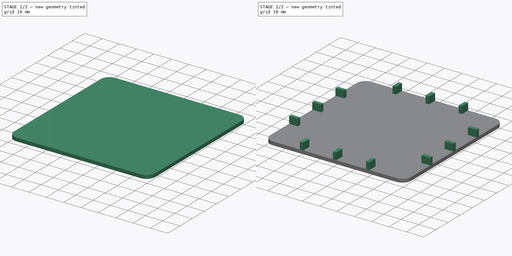
[diagram: build sequence overview — one tinted view per stage of 2, left to right]
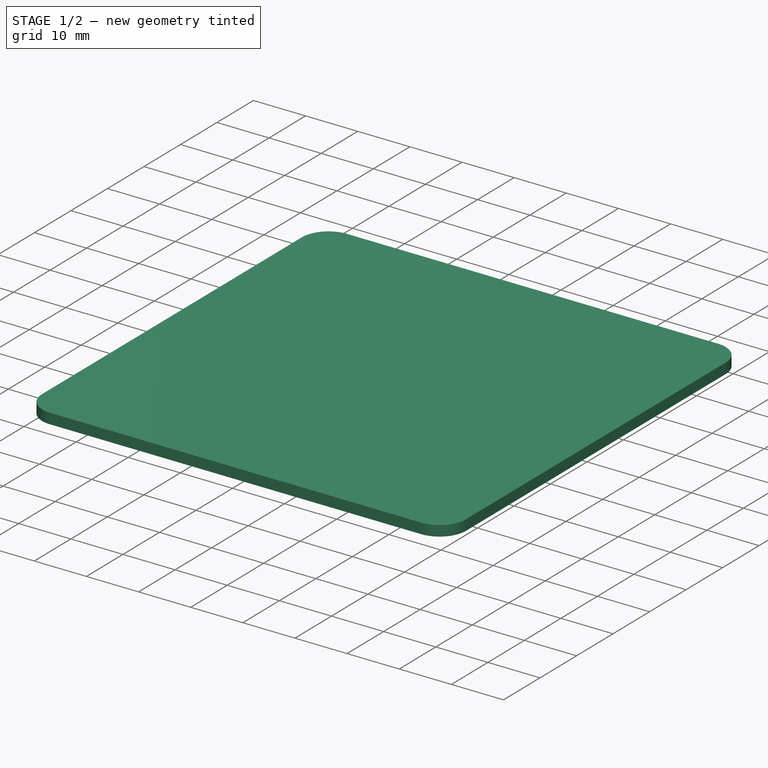
[diagram: stage 1 of 2 — iso view after this stage's code; geometry added in this stage tinted green]
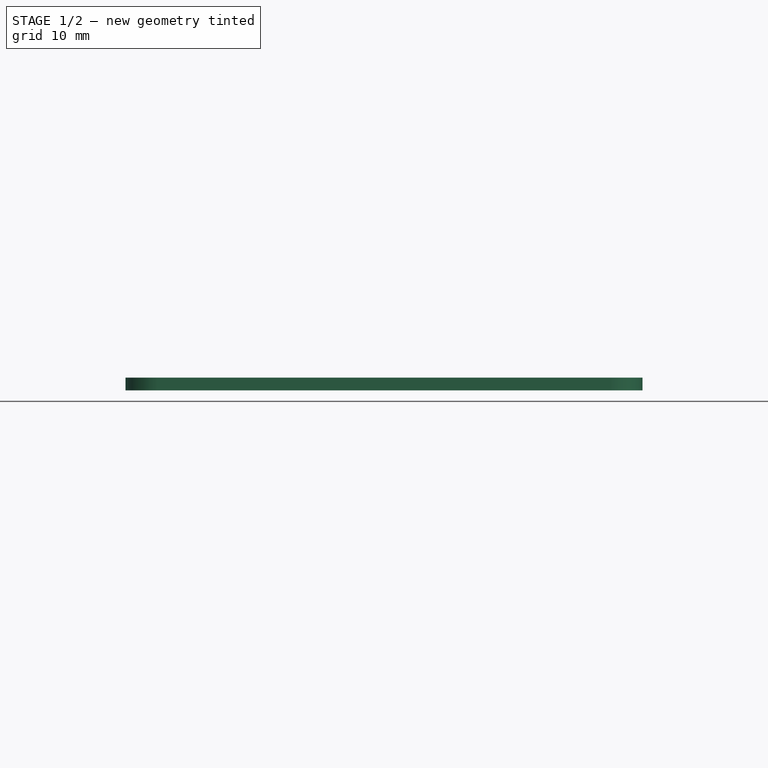
[diagram: stage 1 of 2 — front view after this stage's code; geometry added in this stage tinted green]
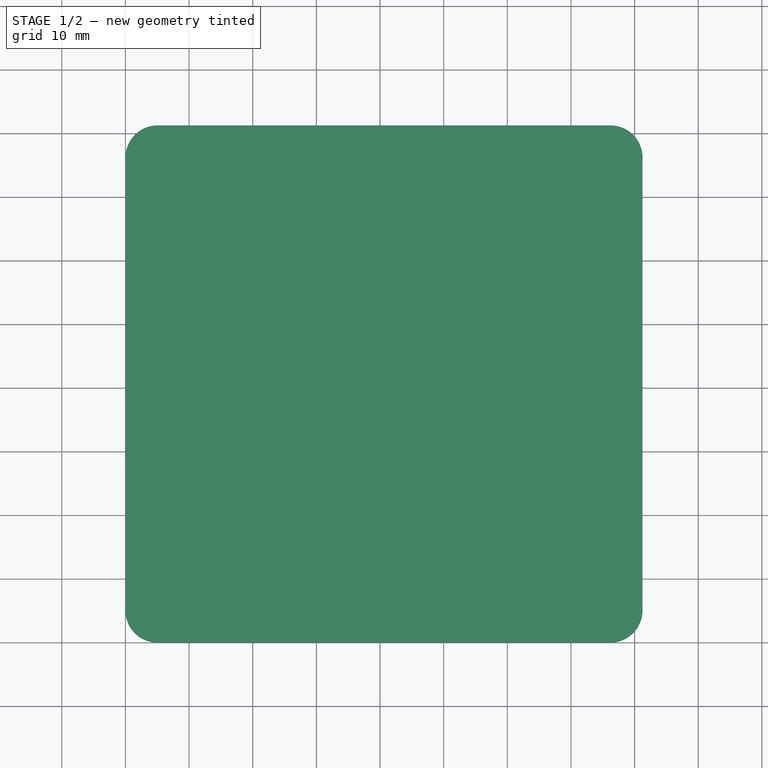
[diagram: stage 1 of 2 — top view after this stage's code; geometry added in this stage tinted green]
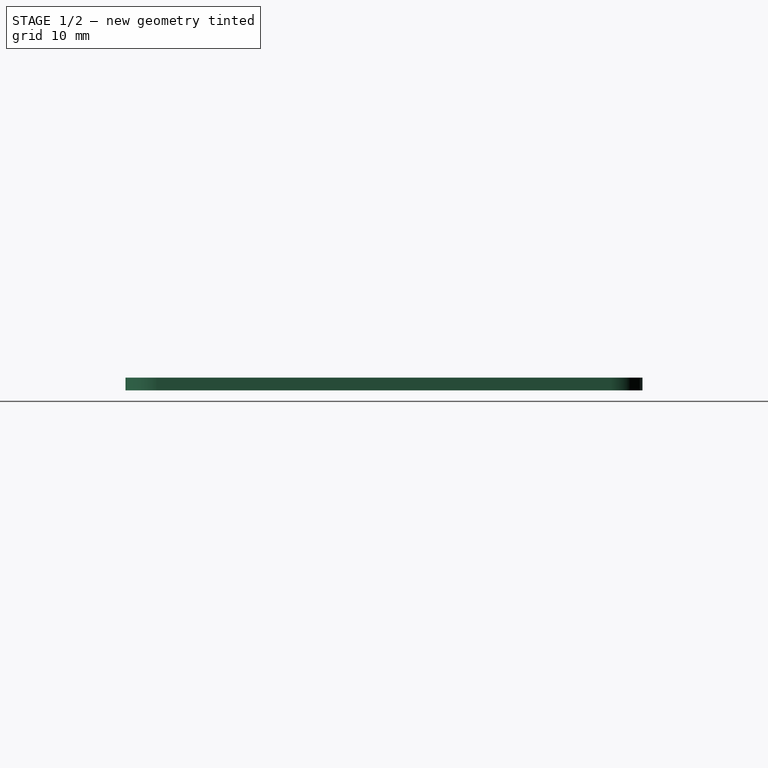
[diagram: stage 1 of 2 — right view after this stage's code; geometry added in this stage tinted green]
FCSTD DOCUMENT  (FreeCAD 0.19R24267 +148 (Git))
Label: 4x4 switch tester bottom
License: All rights reserved
LicenseURL: http://en.wikipedia.org/wiki/All_rights_reserved
objects: Sketcher::SketchObject×2, PartDesign::Pad×2, PartDesign::Fillet×1, PartDesign::Body×1
note: 9 computed .brp shape members not serialized (recipe doc carries the construction recipe); baked Part::Feature solids carry a one-line shape summary decoded from their .brp

FEATURE [Sketcher::SketchObject] Sketch
  FullyConstrained = true
  MapMode = 5
  Support = -> [XY_Plane]
  sketch-geometry (4):
    g0: LineSegment StartX=0 StartY=0 StartZ=0 EndX=81.25 EndY=0 EndZ=0
    g1: LineSegment StartX=81.25 StartY=0 StartZ=0 EndX=81.25 EndY=81.25 EndZ=0
    g2: LineSegment StartX=81.25 StartY=81.25 StartZ=0 EndX=0 EndY=81.25 EndZ=0
    g3: LineSegment StartX=0 StartY=81.25 StartZ=0 EndX=0 EndY=0 EndZ=0
  constraints (11):
    c: Coincident(g0,g1)
    c: Coincident(g1,g2)
    c: Coincident(g2,g3)
    c: Coincident(g3,g0)
    c: Horizontal(g0)
    c: Horizontal(g2)
    c: Vertical(g1)
    c: Vertical(g3)
    c: Coincident(g0,g-1)
    c: Equal(g2,g1)
    c: DistanceX(g2,g2) = 81.25
FEATURE [PartDesign::Pad] Pad
  Direction = (1,1,1)
  Length = 2
  Length2 = 100
  Profile = -> Sketch
  Type = 0
FEATURE [PartDesign::Fillet] Fillet
  Base = -> Pad [Edge2,Edge1,Edge8,Edge5]
  BaseFeature = -> Pad
  Radius = 5.05
  SupportTransform = false
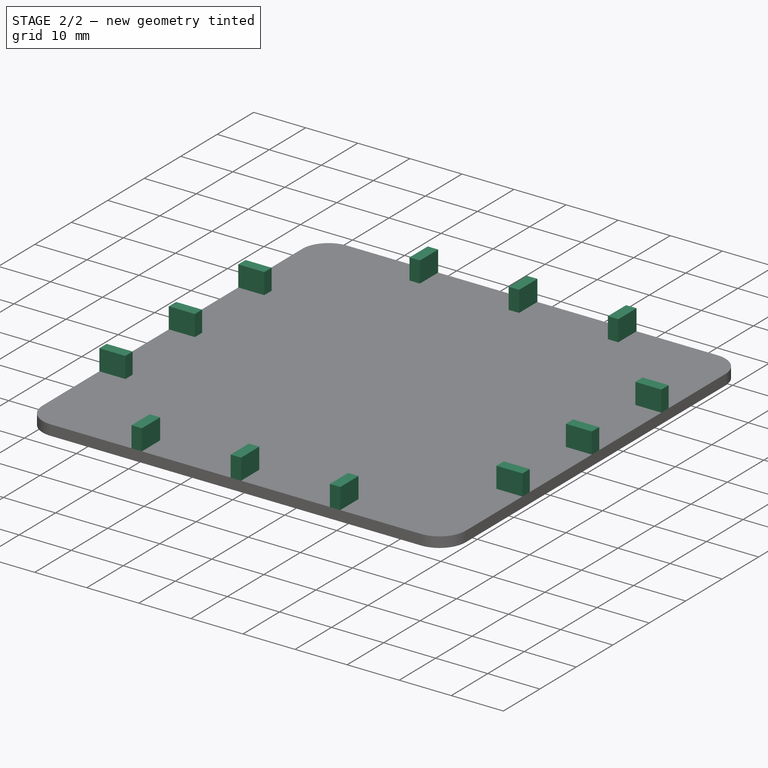
[diagram: stage 2 of 2 — iso view after this stage's code; geometry added in this stage tinted green]
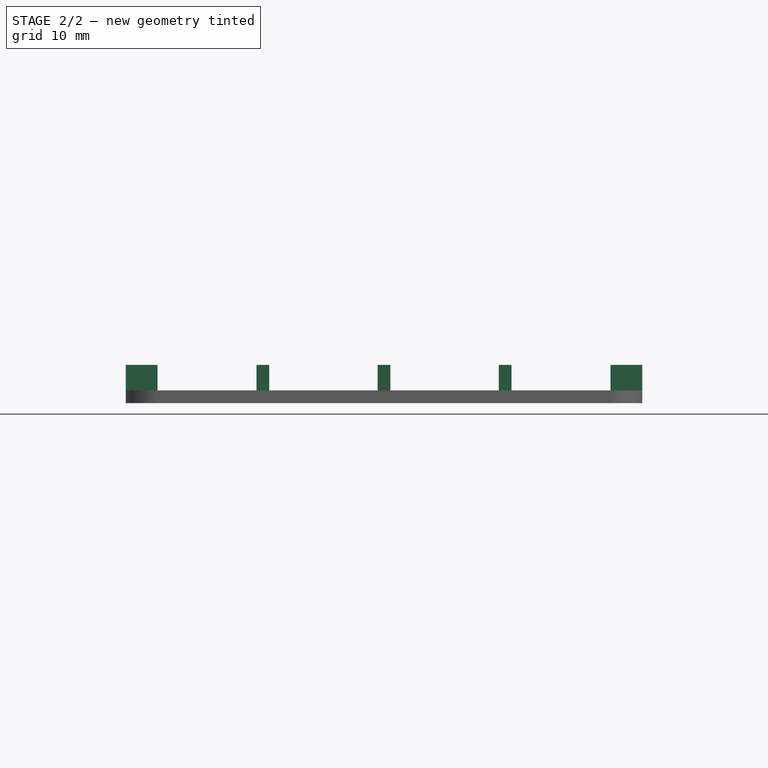
[diagram: stage 2 of 2 — front view after this stage's code; geometry added in this stage tinted green]
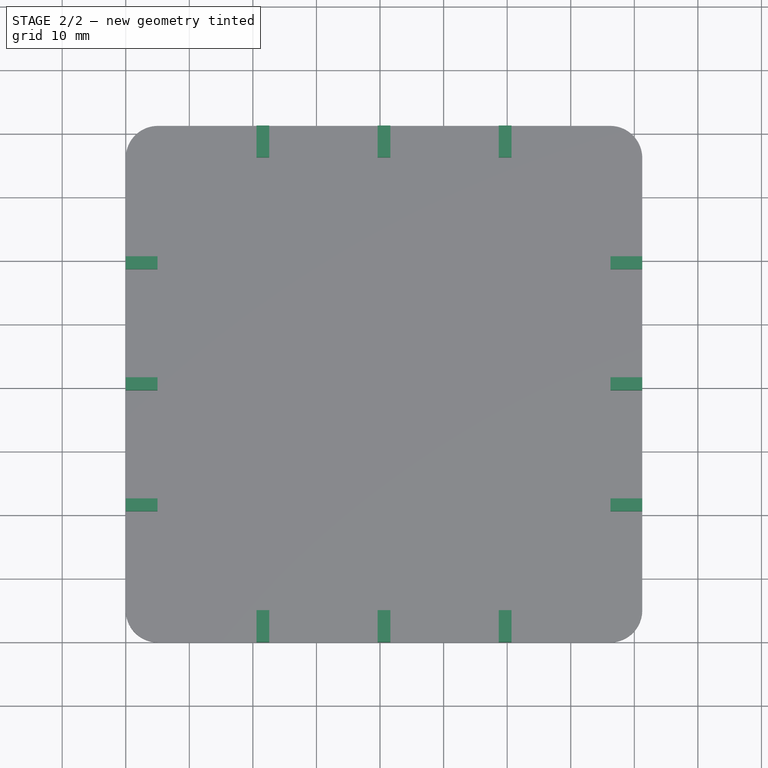
[diagram: stage 2 of 2 — top view after this stage's code; geometry added in this stage tinted green]
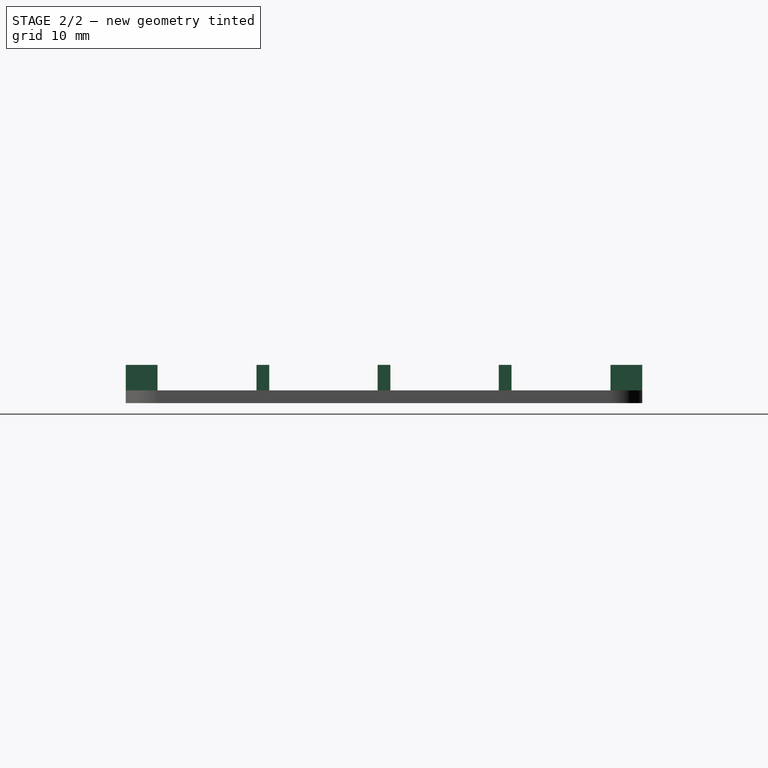
[diagram: stage 2 of 2 — right view after this stage's code; geometry added in this stage tinted green]
FEATURE [Sketcher::SketchObject] Sketch001
  FullyConstrained = true
  MapMode = 5
  Placement = pos=(0,0,2) rot=(0,0,1;0rad)
  Support = -> [Fillet]
  sketch-geometry (103):
    g0: LineSegment StartX=0 StartY=0 StartZ=0 EndX=81.25 EndY=0 EndZ=0
    g1: LineSegment StartX=81.25 StartY=0 StartZ=0 EndX=81.25 EndY=81.25 EndZ=0
    g2: LineSegment StartX=81.25 StartY=81.25 StartZ=0 EndX=0 EndY=81.25 EndZ=0
    g3: LineSegment StartX=0 StartY=81.25 StartZ=0 EndX=0 EndY=0 EndZ=0
    g4: LineSegment StartX=19.05 StartY=81.25 StartZ=0 EndX=19.05 EndY=0 EndZ=0
    g5: LineSegment StartX=24.1 StartY=81.25 StartZ=0 EndX=24.1 EndY=0 EndZ=0
    g6: LineSegment StartX=62.2 StartY=81.25 StartZ=0 EndX=62.2 EndY=0 EndZ=0
    g7: LineSegment StartX=57.15 StartY=81.25 StartZ=0 EndX=57.15 EndY=0 EndZ=0
    g8: LineSegment StartX=0 StartY=81.25 StartZ=0 EndX=81.25 EndY=0 EndZ=0
    g9: LineSegment StartX=81.25 StartY=81.25 StartZ=0 EndX=0 EndY=0 EndZ=0
    g10: LineSegment StartX=19.05 StartY=81.25 StartZ=0 EndX=24.1 EndY=0 EndZ=0
    g11: LineSegment StartX=24.1 StartY=81.25 StartZ=0 EndX=19.05 EndY=0 EndZ=0
    g12: LineSegment StartX=57.15 StartY=81.25 StartZ=0 EndX=62.2 EndY=0 EndZ=0
    g13: LineSegment StartX=62.2 StartY=81.25 StartZ=0 EndX=57.15 EndY=0 EndZ=0
    g14: GeomPoint X=40.625 Y=40.625 Z=0
    g15: GeomPoint X=21.575 Y=40.625 Z=0
    g16: GeomPoint X=59.675 Y=40.625 Z=0
    g17: LineSegment StartX=39.625 StartY=81.25 StartZ=0 EndX=41.625 EndY=81.25 EndZ=0
    g18: LineSegment StartX=41.625 StartY=81.25 StartZ=0 EndX=41.625 EndY=0 EndZ=0
    g19: LineSegment StartX=41.625 StartY=0 StartZ=0 EndX=39.625 EndY=0 EndZ=0
    g20: LineSegment StartX=39.625 StartY=0 StartZ=0 EndX=39.625 EndY=81.25 EndZ=0
    g21: LineSegment StartX=22.575 StartY=81.25 StartZ=0 EndX=20.575 EndY=81.25 EndZ=0
    g22: LineSegment StartX=20.575 StartY=81.25 StartZ=0 EndX=20.575 EndY=0 EndZ=0
    g23: LineSegment StartX=20.575 StartY=0 StartZ=0 EndX=22.575 EndY=0 EndZ=0
    g24: LineSegment StartX=22.575 StartY=0 StartZ=0 EndX=22.575 EndY=81.25 EndZ=0
    g25: LineSegment StartX=20.575 StartY=81.25 StartZ=0 EndX=22.575 EndY=81.25 EndZ=0
    g26: LineSegment StartX=22.575 StartY=81.25 StartZ=0 EndX=22.575 EndY=76.25 EndZ=0
    g27: LineSegment StartX=22.575 StartY=76.25 StartZ=0 EndX=20.575 EndY=76.25 EndZ=0
    g28: LineSegment StartX=20.575 StartY=76.25 StartZ=0 EndX=20.575 EndY=81.25 EndZ=0
    g29: LineSegment StartX=39.625 StartY=81.25 StartZ=0 EndX=41.625 EndY=81.25 EndZ=0
    g30: LineSegment StartX=41.625 StartY=81.25 StartZ=0 EndX=41.625 EndY=76.25 EndZ=0
    g31: LineSegment StartX=41.625 StartY=76.25 StartZ=0 EndX=39.625 EndY=76.25 EndZ=0
    g32: LineSegment StartX=39.625 StartY=76.25 StartZ=0 EndX=39.625 EndY=81.25 EndZ=0
    g33: LineSegment StartX=58.675 StartY=81.25 StartZ=0 EndX=60.675 EndY=81.25 EndZ=0
    g34: LineSegment StartX=60.675 StartY=81.25 StartZ=0 EndX=60.675 EndY=0 EndZ=0
    g35: LineSegment StartX=60.675 StartY=0 StartZ=0 EndX=58.675 EndY=0 EndZ=0
    g36: LineSegment StartX=58.675 StartY=0 StartZ=0 EndX=58.675 EndY=81.25 EndZ=0
    g37: LineSegment StartX=58.675 StartY=81.25 StartZ=0 EndX=60.675 EndY=81.25 EndZ=0
    g38: LineSegment StartX=60.675 StartY=81.25 StartZ=0 EndX=60.675 EndY=76.25 EndZ=0
    g39: LineSegment StartX=60.675 StartY=76.25 StartZ=0 EndX=58.675 EndY=76.25 EndZ=0
    g40: LineSegment StartX=58.675 StartY=76.25 StartZ=0 EndX=58.675 EndY=81.25 EndZ=0
    g41: LineSegment StartX=39.625 StartY=0 StartZ=0 EndX=41.625 EndY=0 EndZ=0
    g42: LineSegment StartX=41.625 StartY=0 StartZ=0 EndX=41.625 EndY=5 EndZ=0
    g43: LineSegment StartX=41.625 StartY=5 StartZ=0 EndX=39.625 EndY=5 EndZ=0
    g44: LineSegment StartX=39.625 StartY=5 StartZ=0 EndX=39.625 EndY=0 EndZ=0
    g45: LineSegment StartX=58.675 StartY=0 StartZ=0 EndX=60.675 EndY=0 EndZ=0
    g46: LineSegment StartX=60.675 StartY=0 StartZ=0 EndX=60.675 EndY=5 EndZ=0
    g47: LineSegment StartX=60.675 StartY=5 StartZ=0 EndX=58.675 EndY=5 EndZ=0
    g48: LineSegment StartX=58.675 StartY=5 StartZ=0 EndX=58.675 EndY=0 EndZ=0
    g49: LineSegment StartX=20.575 StartY=0 StartZ=0 EndX=22.575 EndY=0 EndZ=0
    g50: LineSegment StartX=22.575 StartY=0 StartZ=0 EndX=22.575 EndY=5 EndZ=0
    g51: LineSegment StartX=22.575 StartY=5 StartZ=0 EndX=20.575 EndY=5 EndZ=0
    g52: LineSegment StartX=20.575 StartY=5 StartZ=0 EndX=20.575 EndY=0 EndZ=0
    g53: LineSegment StartX=81.25 StartY=41.625 StartZ=0 EndX=0 EndY=41.625 EndZ=0
    g54: LineSegment StartX=0 StartY=41.625 StartZ=0 EndX=0 EndY=39.625 EndZ=0
    g55: LineSegment StartX=0 StartY=39.625 StartZ=0 EndX=81.25 EndY=39.625 EndZ=0
    g56: LineSegment StartX=81.25 StartY=39.625 StartZ=0 EndX=81.25 EndY=41.625 EndZ=0
    g57: LineSegment StartX=81.25 StartY=39.625 StartZ=0 EndX=76.25 EndY=39.625 EndZ=0
    g58: LineSegment StartX=76.25 StartY=39.625 StartZ=0 EndX=76.25 EndY=41.625 EndZ=0
    g59: LineSegment StartX=76.25 StartY=41.625 StartZ=0 EndX=81.25 EndY=41.625 EndZ=0
    g60: LineSegment StartX=81.25 StartY=41.625 StartZ=0 EndX=81.25 EndY=39.625 EndZ=0
    g61: LineSegment StartX=0 StartY=41.625 StartZ=0 EndX=5 EndY=41.625 EndZ=0
    g62: LineSegment StartX=5 StartY=41.625 StartZ=0 EndX=5 EndY=39.625 EndZ=0
    g63: LineSegment StartX=5 StartY=39.625 StartZ=0 EndX=0 EndY=39.625 EndZ=0
    g64: LineSegment StartX=0 StartY=39.625 StartZ=0 EndX=0 EndY=41.625 EndZ=0
    g65: LineSegment StartX=72.6188 StartY=81.25 StartZ=0 EndX=72.6188 EndY=62.2 EndZ=0
    g66: LineSegment StartX=72.6188 StartY=62.2 StartZ=0 EndX=72.6188 EndY=57.15 EndZ=0
    g67: LineSegment StartX=81.25 StartY=62.2 StartZ=0 EndX=0 EndY=62.2 EndZ=0
    g68: LineSegment StartX=81.25 StartY=57.15 StartZ=0 EndX=0 EndY=57.15 EndZ=0
    g69: LineSegment StartX=81.25 StartY=62.2 StartZ=0 EndX=72.6188 EndY=57.15 EndZ=0
    g70: LineSegment StartX=81.25 StartY=57.15 StartZ=0 EndX=72.6188 EndY=62.2 EndZ=0
    g71: GeomPoint X=76.9344 Y=59.675 Z=0
    g72: LineSegment StartX=81.25 StartY=60.675 StartZ=0 EndX=76.25 EndY=60.675 EndZ=0
    g73: LineSegment StartX=76.25 StartY=60.675 StartZ=0 EndX=76.25 EndY=58.675 EndZ=0
    g74: LineSegment StartX=76.25 StartY=58.675 StartZ=0 EndX=81.25 EndY=58.675 EndZ=0
    g75: LineSegment StartX=81.25 StartY=58.675 StartZ=0 EndX=81.25 EndY=60.675 EndZ=0
    g76: LineSegment StartX=81.25 StartY=60.675 StartZ=0 EndX=76.25 EndY=58.675 EndZ=0
    g77: LineSegment StartX=81.25 StartY=58.675 StartZ=0 EndX=76.25 EndY=60.675 EndZ=0
    g78: GeomPoint X=78.75 Y=59.675 Z=0
    g79: LineSegment StartX=76.9344 StartY=59.675 StartZ=0 EndX=78.75 EndY=59.675 EndZ=0
    g80: LineSegment StartX=73.2897 StartY=0 StartZ=0 EndX=73.2897 EndY=19.05 EndZ=0
    g81: LineSegment StartX=73.2897 StartY=19.05 StartZ=0 EndX=73.2897 EndY=24.1 EndZ=0
    g82: LineSegment StartX=81.25 StartY=24.1 StartZ=0 EndX=0 EndY=24.1 EndZ=0
    g83: LineSegment StartX=81.25 StartY=19.05 StartZ=0 EndX=0 EndY=19.05 EndZ=0
    g84: LineSegment StartX=81.25 StartY=24.1 StartZ=0 EndX=73.2897 EndY=19.05 EndZ=0
    g85: LineSegment StartX=81.25 StartY=19.05 StartZ=0 EndX=73.2897 EndY=24.1 EndZ=0
    g86: GeomPoint X=77.2698 Y=21.575 Z=0
    g87: LineSegment StartX=81.25 StartY=22.575 StartZ=0 EndX=76.25 EndY=22.575 EndZ=0
    g88: LineSegment StartX=76.25 StartY=22.575 StartZ=0 EndX=76.25 EndY=20.575 EndZ=0
    g89: LineSegment StartX=76.25 StartY=20.575 StartZ=0 EndX=81.25 EndY=20.575 EndZ=0
    g90: LineSegment StartX=81.25 StartY=20.575 StartZ=0 EndX=81.25 EndY=22.575 EndZ=0
    g91: LineSegment StartX=76.25 StartY=20.575 StartZ=0 EndX=0 EndY=20.575 EndZ=0
    g92: LineSegment StartX=76.25 StartY=22.575 StartZ=0 EndX=0 EndY=22.575 EndZ=0
    g93: LineSegment StartX=76.25 StartY=60.675 StartZ=0 EndX=0 EndY=60.675 EndZ=0
    g94: LineSegment StartX=76.25 StartY=58.675 StartZ=0 EndX=0 EndY=58.675 EndZ=0
    g95: LineSegment StartX=0 StartY=60.675 StartZ=0 EndX=5 EndY=60.675 EndZ=0
    g96: LineSegment StartX=5 StartY=60.675 StartZ=0 EndX=5 EndY=58.675 EndZ=0
    g97: LineSegment StartX=5 StartY=58.675 StartZ=0 EndX=0 EndY=58.675 EndZ=0
    g98: LineSegment StartX=0 StartY=58.675 StartZ=0 EndX=0 EndY=60.675 EndZ=0
    g99: LineSegment StartX=0 StartY=22.575 StartZ=0 EndX=5 EndY=22.575 EndZ=0
    g100: LineSegment StartX=5 StartY=22.575 StartZ=0 EndX=5 EndY=20.575 EndZ=0
    g101: LineSegment StartX=5 StartY=20.575 StartZ=0 EndX=0 EndY=20.575 EndZ=0
    g102: LineSegment StartX=0 StartY=20.575 StartZ=0 EndX=0 EndY=22.575 EndZ=0
  constraints (289):
    c: Coincident(g0,g1)
    c: Coincident(g1,g2)
    c: Coincident(g2,g3)
    c: Coincident(g3,g0)
    c: Horizontal(g0)
    c: Horizontal(g2)
    c: Vertical(g1)
    c: Vertical(g3)
    c: Coincident(g0,g-1)
    c: Equal(g2,g1)
    c: DistanceX(g2,g2) = 81.25
    c: PointOnObject(g4,g2)
    c: PointOnObject(g4,g0)
    c: Vertical(g4)
    c: Distance(g2,g4) = 19.05
    c: PointOnObject(g5,g2)
    c: PointOnObject(g5,g0)
    c: Vertical(g5)
    c: Distance(g5,g4) = 5.05
    c: PointOnObject(g6,g2)
    c: PointOnObject(g6,g0)
    c: Vertical(g6)
    c: PointOnObject(g7,g2)
    c: PointOnObject(g7,g0)
    c: Vertical(g7)
    c: Distance(g7,g6) = 5.05
    c: Distance(g1,g6) = 19.05
    c: Coincident(g8,g2)
    c: Coincident(g8,g0)
    c: Coincident(g9,g1)
    c: Coincident(g9,g-1)
    c: Coincident(g10,g4)
    c: Coincident(g10,g5)
    c: Coincident(g11,g5)
    c: Coincident(g11,g4)
    c: Coincident(g12,g7)
    c: Coincident(g12,g6)
    c: Coincident(g13,g6)
    c: Coincident(g13,g7)
    c: PointOnObject(g14,g8)
    c: PointOnObject(g15,g10)
    c: PointOnObject(g16,g12)
    c: PointOnObject(g14,g9)
    c: PointOnObject(g15,g11)
    c: PointOnObject(g16,g13)
    c: Coincident(g17,g18)
    c: Coincident(g18,g19)
    c: Coincident(g19,g20)
    c: Coincident(g20,g17)
    c: Horizontal(g17)
    c: Horizontal(g19)
    c: Vertical(g18)
    c: Vertical(g20)
    c: PointOnObject(g17,g2)
    c: DistanceX(g19,g19) = 2
    c: PointOnObject(g18,g0)
    c: Coincident(g21,g22)
    c: Coincident(g22,g23)
    c: Coincident(g23,g24)
    c: Coincident(g24,g21)
    c: Horizontal(g21)
    c: Horizontal(g23)
    c: Vertical(g22)
    c: Vertical(g24)
    c: Distance(g21) = 2
    c: PointOnObject(g21,g2)
    c: PointOnObject(g23,g0)
    c: Distance(g15,g24) = 1
    c: Coincident(g25,g26)
    c: Coincident(g26,g27)
    c: Coincident(g27,g28)
    c: Coincident(g28,g25)
    c: Horizontal(g25)
    c: Horizontal(g27)
    c: Vertical(g26)
    c: Vertical(g28)
    c: Coincident(g25,g21)
    c: PointOnObject(g26,g24)
    c: DistanceY(g26,g26) = 5
    c: Coincident(g29,g30)
    c: Coincident(g30,g31)
    c: Coincident(g31,g32)
    c: Coincident(g32,g29)
    c: Horizontal(g29)
    c: Horizontal(g31)
    c: Vertical(g30)
    c: Vertical(g32)
    c: Coincident(g29,g17)
    c: PointOnObject(g30,g18)
    c: DistanceY(g30,g30) = 5
    c: Coincident(g33,g34)
    c: Coincident(g34,g35)
    c: Coincident(g35,g36)
    c: Coincident(g36,g33)
    c: Horizontal(g33)
    c: Horizontal(g35)
    c: Vertical(g34)
    c: Vertical(g36)
    c: PointOnObject(g33,g2)
    c: DistanceX(g35,g35) = 2
    c: PointOnObject(g34,g0)
    c: Distance(g16,g34) = 1
    c: Coincident(g37,g38)
    c: Coincident(g38,g39)
    c: Coincident(g39,g40)
    c: Coincident(g40,g37)
    c: Horizontal(g37)
    c: Horizontal(g39)
    c: Vertical(g38)
    c: Vertical(g40)
    c: Coincident(g37,g33)
    c: PointOnObject(g38,g34)
    c: DistanceY(g38,g38) = 5
    c: Coincident(g41,g42)
    c: Coincident(g42,g43)
    c: Coincident(g43,g44)
    c: Coincident(g44,g41)
    c: Horizontal(g41)
    c: Horizontal(g43)
    c: Vertical(g42)
    c: Vertical(g44)
    c: Coincident(g41,g19)
    c: PointOnObject(g42,g18)
    c: DistanceY(g42,g42) = 5
    c: Coincident(g45,g46)
    c: Coincident(g46,g47)
    c: Coincident(g47,g48)
    c: Coincident(g48,g45)
    c: Horizontal(g45)
    c: Horizontal(g47)
    c: Vertical(g46)
    c: Vertical(g48)
    c: Coincident(g45,g35)
    c: PointOnObject(g46,g34)
    c: DistanceY(g46,g46) = 5
    c: Coincident(g49,g50)
    c: Coincident(g50,g51)
    c: Coincident(g51,g52)
    c: Coincident(g52,g49)
    c: Horizontal(g49)
    c: Horizontal(g51)
    c: Vertical(g50)
    c: Vertical(g52)
    c: Coincident(g49,g22)
    c: PointOnObject(g50,g24)
    c: DistanceY(g50,g50) = 5
    c: Coincident(g53,g54)
    c: Coincident(g54,g55)
    c: Coincident(g55,g56)
    c: Coincident(g56,g53)
    c: Horizontal(g53)
    c: Horizontal(g55)
    c: Vertical(g54)
    c: Vertical(g56)
    c: PointOnObject(g53,g1)
    c: DistanceY(g54,g54) = 2
    c: PointOnObject(g54,g3)
    c: Distance(g16,g55) = 1
    c: Coincident(g57,g58)
    c: Coincident(g58,g59)
    c: Coincident(g59,g60)
    c: Coincident(g60,g57)
    c: Horizontal(g57)
    c: Horizontal(g59)
    c: Vertical(g58)
    c: Vertical(g60)
    c: Coincident(g57,g55)
    c: PointOnObject(g58,g53)
    c: DistanceX(g57,g57) = 5
    c: Coincident(g61,g62)
    c: Coincident(g62,g63)
    c: Coincident(g63,g64)
    c: Coincident(g64,g61)
    c: Horizontal(g61)
    c: Horizontal(g63)
    c: Vertical(g62)
    c: Vertical(g64)
    c: Coincident(g61,g53)
    c: PointOnObject(g62,g55)
    c: DistanceX(g63,g63) = 5
    c: PointOnObject(g65,g2)
    c: Vertical(g65)
    c: DistanceY(g65,g65) = 19.05
    c: Coincident(g66,g65)
    c: Vertical(g66)
    c: DistanceY(g66,g66) = 5.05
    c: PointOnObject(g67,g1)
    c: PointOnObject(g67,g3)
    c: Horizontal(g67)
    c: PointOnObject(g68,g1)
    c: PointOnObject(g68,g3)
    c: Horizontal(g68)
    c: PointOnObject(g66,g68)
    c: PointOnObject(g65,g67)
    c: Coincident(g69,g67)
    c: Coincident(g69,g66)
    c: Coincident(g70,g68)
    c: Coincident(g70,g65)
    c: PointOnObject(g71,g69)
    c: PointOnObject(g71,g70)
    c: Coincident(g72,g73)
    c: Coincident(g73,g74)
    c: Coincident(g74,g75)
    c: Coincident(g75,g72)
    c: Horizontal(g72)
    c: Horizontal(g74)
    c: Vertical(g73)
    c: Vertical(g75)
    c: PointOnObject(g72,g1)
    c: DistanceY(g73,g73) = 2
    c: DistanceX(g74,g74) = 5
    c: Coincident(g76,g72)
    c: Coincident(g76,g73)
    c: Coincident(g77,g74)
    c: Coincident(g77,g72)
    c: PointOnObject(g78,g76)
    c: PointOnObject(g78,g77)
    c: Coincident(g79,g71)
    c: Coincident(g79,g78)
    c: Horizontal(g79)
    c: Distance(g69) = 10
    c: PointOnObject(g80,g0)
    c: Vertical(g80)
    c: Coincident(g81,g80)
    c: Vertical(g81)
    c: DistanceY(g80,g80) = 19.05
    c: Distance(g81) = 5.05
    c: DistanceX(g81) = 73.2897
    c: PointOnObject(g82,g1)
    c: PointOnObject(g82,g3)
    c: Horizontal(g82)
    c: PointOnObject(g83,g1)
    c: PointOnObject(g83,g3)
    c: Horizontal(g83)
    c: PointOnObject(g80,g83)
    c: PointOnObject(g81,g82)
    c: Coincident(g84,g82)
    c: Coincident(g84,g80)
    c: Coincident(g85,g83)
    c: Coincident(g85,g81)
    c: PointOnObject(g86,g84)
    c: PointOnObject(g86,g85)
    c: Coincident(g87,g88)
    c: Coincident(g88,g89)
    c: Coincident(g89,g90)
    c: Coincident(g90,g87)
    c: Horizontal(g87)
    c: Horizontal(g89)
    c: Vertical(g88)
    c: Vertical(g90)
    c: PointOnObject(g87,g1)
    c: DistanceY(g88,g88) = 2
    c: Distance(g86,g89) = 1
    c: DistanceX(g89,g89) = 5
    c: Coincident(g91,g88)
    c: PointOnObject(g91,g3)
    c: Horizontal(g91)
    c: Coincident(g92,g87)
    c: PointOnObject(g92,g3)
    c: Horizontal(g92)
    c: Coincident(g93,g72)
    c: PointOnObject(g93,g3)
    c: Horizontal(g93)
    c: Coincident(g94,g73)
    c: PointOnObject(g94,g3)
    c: Horizontal(g94)
    c: Coincident(g95,g96)
    c: Coincident(g96,g97)
    c: Coincident(g97,g98)
    c: Coincident(g98,g95)
    c: Horizontal(g95)
    c: Horizontal(g97)
    c: Vertical(g96)
    c: Vertical(g98)
    c: Coincident(g95,g93)
    c: PointOnObject(g96,g94)
    c: DistanceX(g97,g97) = 5
    c: Coincident(g99,g100)
    c: Coincident(g100,g101)
    c: Coincident(g101,g102)
    c: Coincident(g102,g99)
    c: Horizontal(g99)
    c: Horizontal(g101)
    c: Vertical(g100)
    c: Vertical(g102)
    c: Coincident(g99,g92)
    c: PointOnObject(g100,g91)
    c: DistanceX(g101,g101) = 5
    c: Distance(g14,g18) = 1
FEATURE [PartDesign::Pad] Pad001
  BaseFeature = -> Fillet
  Direction = (1,1,1)
  Length = 4
  Length2 = 100
  Profile = -> Sketch001
  Type = 0
FEATURE [PartDesign::Body] Body
  Group = -> [Sketch,Pad,Fillet,Sketch001,Pad001]
  Origin = -> Origin
  Tip = -> Pad001
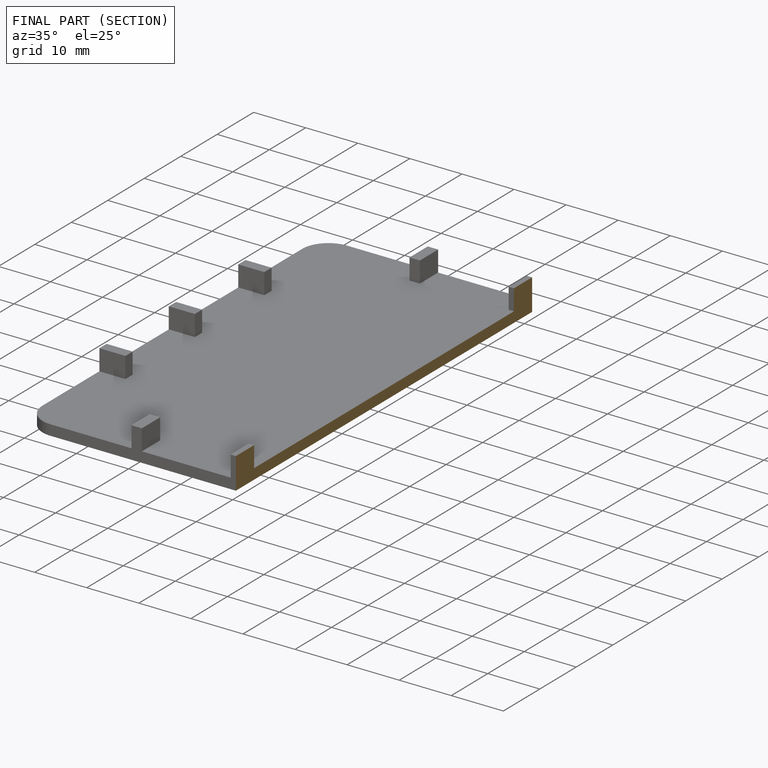
[diagram: finished part — half-section view (interior)]
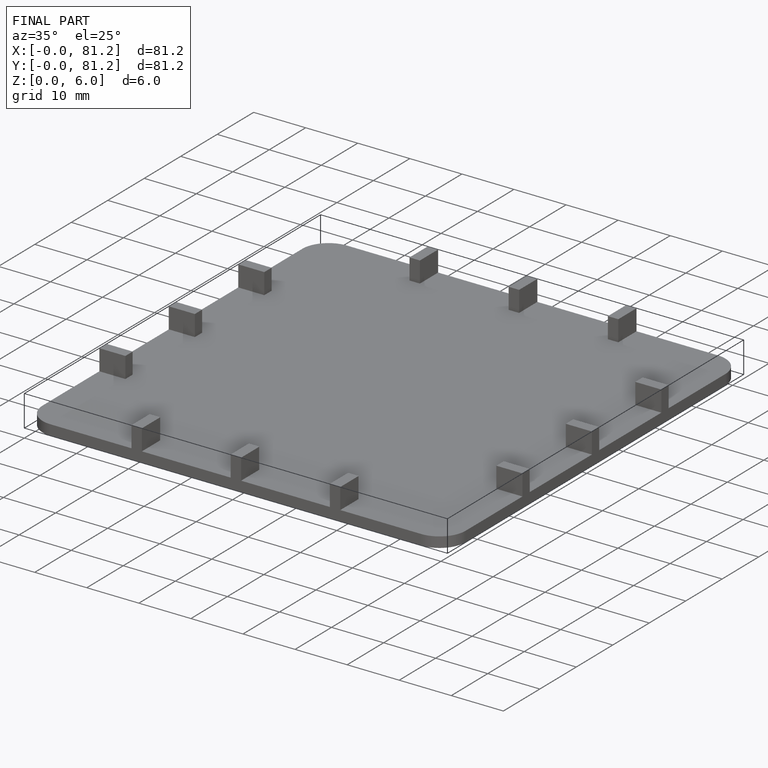
[diagram: finished part — iso view with bounding-box wireframe]
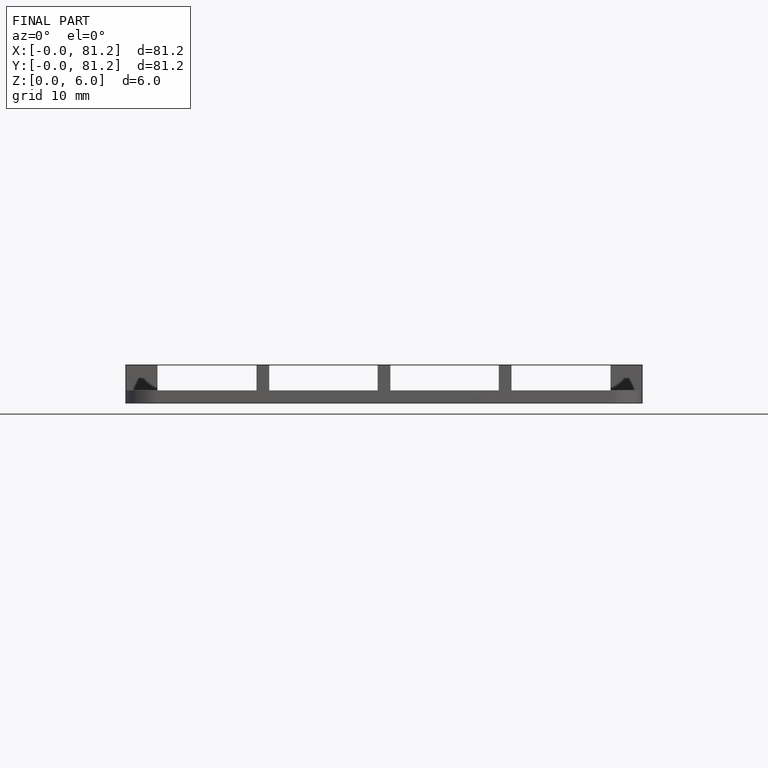
[diagram: finished part — front view with bounding-box wireframe]
